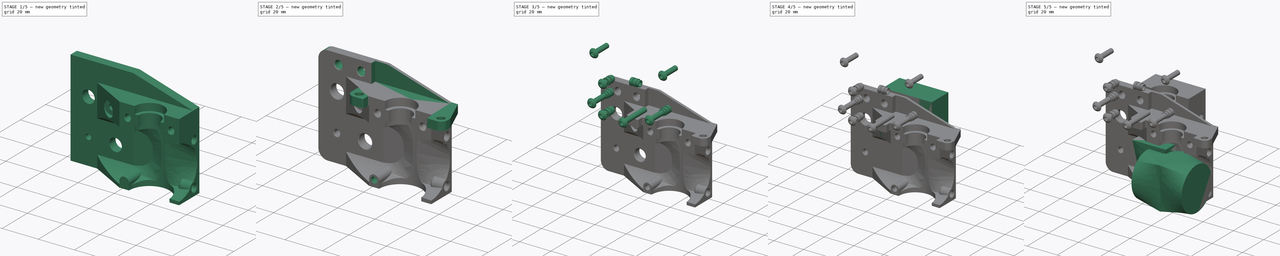
[diagram: build sequence overview — one tinted view per stage of 5, left to right]
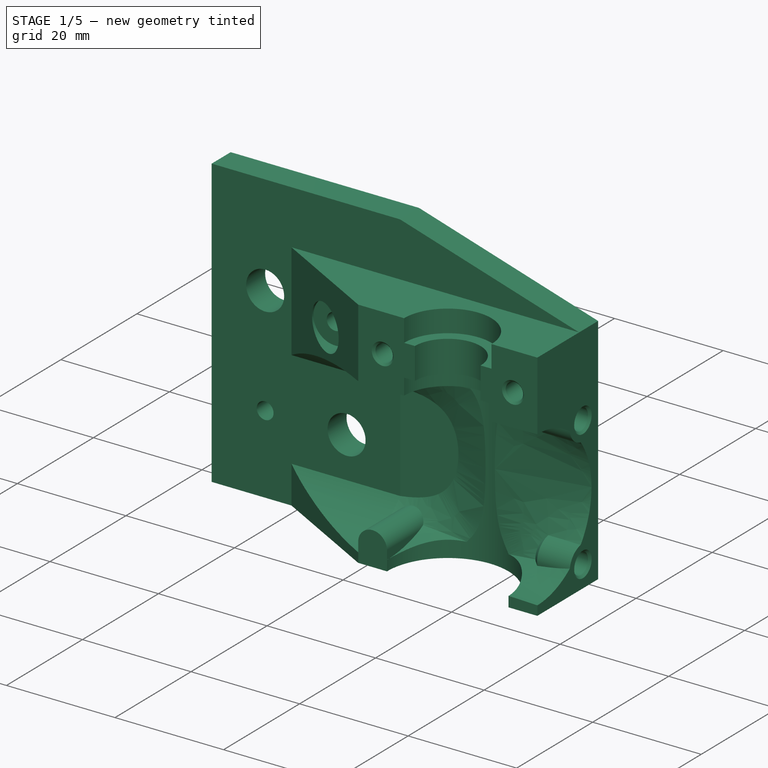
[diagram: stage 1 of 5 — iso view after this stage's code; geometry added in this stage tinted green]
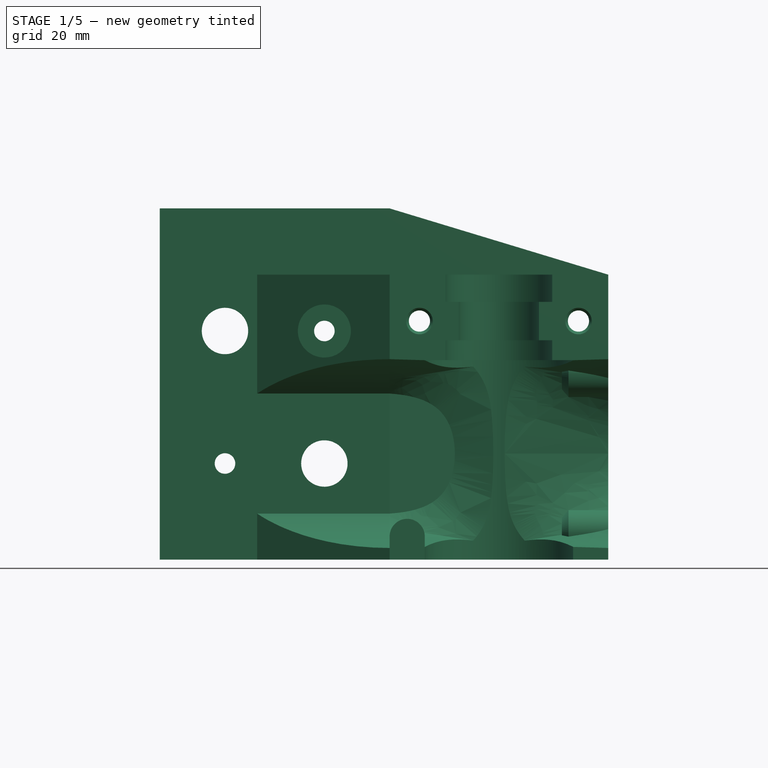
[diagram: stage 1 of 5 — front view after this stage's code; geometry added in this stage tinted green]
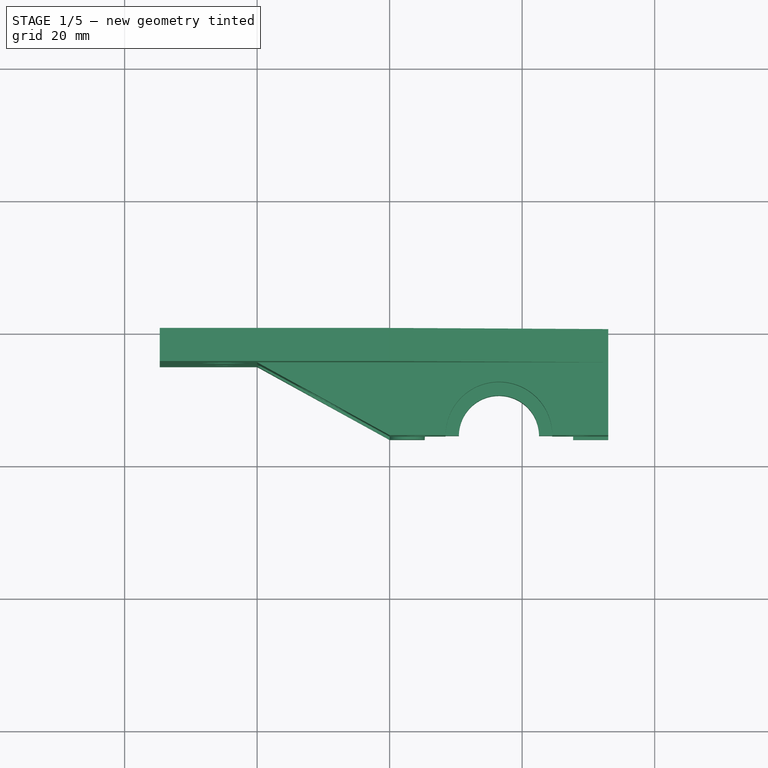
[diagram: stage 1 of 5 — top view after this stage's code; geometry added in this stage tinted green]
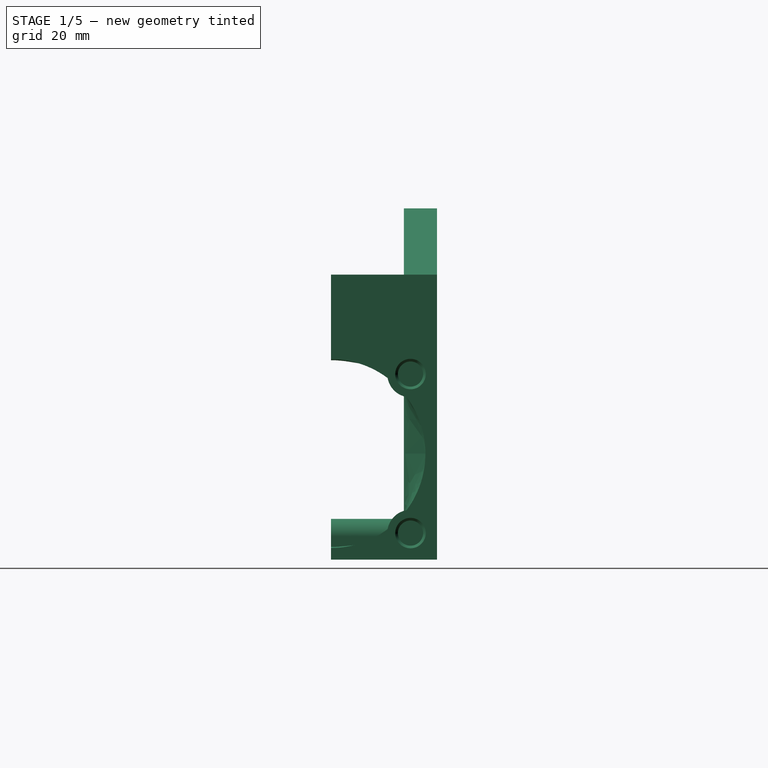
[diagram: stage 1 of 5 — right view after this stage's code; geometry added in this stage tinted green]
FCSTD DOCUMENT  (FreeCAD 0.19R24366 (Git))
Label: back-body-direct
License: All rights reserved
LicenseURL: http://en.wikipedia.org/wiki/All_rights_reserved
objects: Part::Feature×49, Sketcher::SketchObject×23, PartDesign::Pocket×16, Part::FeaturePython×12, App::Part×8, PartDesign::Body×7, Part::MultiFuse×5, PartDesign::Pad×5, PartDesign::Chamfer×5, PartDesign::FeatureBase×4, Part::Box×4, PartDesign::Fillet×3, PartDesign::Plane×2, Part::Cut×2, Part::Chamfer×2, PartDesign::AdditiveLoft×1, Part::Cylinder×1, PartDesign::CoordinateSystem×1
note: 172 computed .brp shape members not serialized (recipe doc carries the construction recipe); baked Part::Feature solids carry a one-line shape summary decoded from their .brp

FEATURE [PartDesign::Body] Body002002002
  BaseFeature = -> Body002002001
  Group = -> [BaseFeature001,Sketch015,Pocket006,Sketch016,Pocket007,Chamfer001]
  Origin = -> Origin012
  Placement = pos=(16.5,-16,-11) rot=(0,0,1;0rad)
  Tip = -> Chamfer001
FEATURE [Sketcher::SketchObject] Sketch017
  FullyConstrained = true
  MapMode = 5
  Placement = pos=(0,0,0) rot=(1,0,0;1.5708rad)
  Support = -> [XZ_Plane013]
  sketch-geometry (8):
    g0: LineSegment StartX=0 StartY=-11 StartZ=0 EndX=-34.7 EndY=-11 EndZ=0
    g1: LineSegment StartX=-34.7 StartY=-11 StartZ=0 EndX=-34.7 EndY=42 EndZ=0
    g2: LineSegment StartX=-34.7 StartY=42 StartZ=0 EndX=0 EndY=42 EndZ=0
    g3: LineSegment StartX=0 StartY=42 StartZ=0 EndX=0 EndY=-11 EndZ=0
    g4: Circle CenterX=-24.85 CenterY=23.5 CenterZ=0 NormalX=0 NormalY=0 NormalZ=1 AngleXU=0 Radius=3.5
    g5: Circle CenterX=-9.85 CenterY=23.5 CenterZ=0 NormalX=0 NormalY=0 NormalZ=1 AngleXU=0 Radius=1.55
    g6: Circle CenterX=-24.85 CenterY=3.5 CenterZ=0 NormalX=0 NormalY=0 NormalZ=1 AngleXU=0 Radius=1.55
    g7: Circle CenterX=-9.85 CenterY=3.5 CenterZ=0 NormalX=0 NormalY=0 NormalZ=1 AngleXU=0 Radius=3.5
  constraints (24):
    c: Coincident(g0,g1)
    c: Coincident(g1,g2)
    c: Coincident(g2,g3)
    c: Coincident(g3,g0)
    c: Horizontal(g0)
    c: Horizontal(g2)
    c: Vertical(g1)
    c: Vertical(g3)
    c: PointOnObject(g0,g-2)
    c: Vertical(g6,g4)
    c: Vertical(g7,g5)
    c: Horizontal(g4,g5)
    c: Horizontal(g6,g7)
    c: Equal(g4,g7)
    c: Equal(g6,g5)
    c: DistanceX(g4,g5) = 15
    c: DistanceY(g6,g4) = 20
    c: DistanceY(g-1,g7) = 3.5
    c: DistanceX(g7,g-1) = 9.85
    c: DistanceX(g2,g2) = 34.7
    c: DistanceY(g0,g-1) = 11
    c: DistanceY(g-1,g2) = 42
    c: Radius(g5) = 1.55
    c: Radius(g4) = 3.5
FEATURE [PartDesign::Pad] Pad002
  Direction = (1,1,1)
  Length = 5
  Length2 = 100
  Placement = pos=(0,0,0) rot=(1,0,0;1.5708rad)
  Profile = -> Sketch017
  Type = 0
FEATURE [PartDesign::Body] Body002002003
  Group = -> [Sketch017,Pad002]
  Origin = -> Origin013
  Tip = -> Pad002
FEATURE [Part::Feature] Body002002002001
  Placement = pos=(16.5,-16,-11) rot=(0,0,1;0rad)
  shape: bbox 33 x 27 x 43 mm, 51 faces (baked)
FEATURE [Part::MultiFuse] Fusion002
  Shapes = -> [Body002002003,Body002002002001]
FEATURE [Part::Box] Box  label="Cube"
  AttacherType = Attacher::AttachEngine3D
  Height = 19
  Length = 15
  Placement = pos=(0,-5,-4.5) rot=(0,0,1;0rad)
  Width = 5
FEATURE [Part::Chamfer] Chamfer002
  Base = -> Box
  Edges = 1 edges: [Edge5 r1=2 r2=14.99]
FEATURE [Part::MultiFuse] Fusion003
  Shapes = -> [Chamfer002,Fusion002]
FEATURE [PartDesign::Body] Body002002002002  label="side-dupporter"
  BaseFeature = -> Fusion004
  Group = -> [BaseFeature002,Sketch018,Pocket008]
  Origin = -> Origin014
  Tip = -> Pocket008
FEATURE [Part::Feature] Body002002002002001  label="side-dupporter001"
  shape: bbox 20 x 16 x 43 mm, 16 faces (baked)
FEATURE [Part::Box] Box003  label="Cube003"
  AttacherType = Attacher::AttachEngine3D
  Height = 11
  Length = 34
  Placement = pos=(-1,-5,31) rot=(0,0,1;0rad)
  Width = 5
FEATURE [Part::Chamfer] Chamfer003
  Base = -> Box003
  Edges = 1 edges: [Edge6 r1=10 r2=33]
FEATURE [Part::MultiFuse] Fusion005
  Refine = true
  Shapes = -> [Fusion003,Body002002002002001,Chamfer003]
FEATURE [PartDesign::FeatureBase] BaseFeature003
  BaseFeature = -> Fusion005
FEATURE [Sketcher::SketchObject] Sketch019
  ExternalGeometry = -> [BaseFeature003]
  FullyConstrained = true
  MapMode = 5
  Placement = pos=(0,0,0) rot=(0,0.707107,0.707107;3.14159rad)
  Support = -> [BaseFeature003]
  sketch-geometry (2):
    g0: Circle CenterX=9.85 CenterY=23.5 CenterZ=0 NormalX=0 NormalY=0 NormalZ=1 AngleXU=0 Radius=1.55
    g1: Circle CenterX=9.85 CenterY=3.5 CenterZ=0 NormalX=0 NormalY=0 NormalZ=1 AngleXU=0 Radius=3.5
  constraints (6):
    c: Vertical(g1,g0)
    c: Horizontal(g0,g-3)
    c: Horizontal(g1,g-4)
    c: Equal(g1,g-3)
    c: Equal(g0,g-4)
    c: DistanceX(g0,g-3) = 15
FEATURE [PartDesign::Pocket] Pocket009
  BaseFeature = -> BaseFeature003
  Length = 5
  Length2 = 100
  Profile = -> Sketch019
  Type = 1
FEATURE [PartDesign::Plane] DatumPlane001
  AttachmentOffset = pos=(0,0,8) rot=(0,0,1;0rad)
  Length = 91.1466
  MapMode = 5
  Placement = pos=(0,-8,-1.8e-15) rot=(1,0,0;1.5708rad)
  ResizeMode = 0
  Support = -> [XZ_Plane015]
  Width = 81.3466
FEATURE [Sketcher::SketchObject] Sketch020
  ExternalGeometry = -> [Pocket009]
  FullyConstrained = true
  MapMode = 5
  Placement = pos=(0,-8,-1.8e-15) rot=(1,0,0;1.5708rad)
  Support = -> [DatumPlane001]
  sketch-geometry (1):
    g0: Circle CenterX=-9.85 CenterY=23.5 CenterZ=0 NormalX=0 NormalY=0 NormalZ=1 AngleXU=0 Radius=4
  constraints (2):
    c: Coincident(g0,g-3)
    c: Radius(g0) = 4
FEATURE [PartDesign::Pocket] Pocket010
  BaseFeature = -> Pocket009
  Length = 5
  Length2 = 100
  Profile = -> Sketch020
  Reversed = true
  Type = 1
FEATURE [Sketcher::SketchObject] Sketch021
  ExternalGeometry = -> [Pocket010]
  FullyConstrained = true
  MapMode = 5
  Placement = pos=(0,-16,3.5e-15) rot=(1,0,0;1.5708rad)
  Support = -> [Pocket010]
  sketch-geometry (4):
    g0: ArcOfCircle CenterX=2.65 CenterY=-7.5 CenterZ=0 NormalX=0 NormalY=0 NormalZ=1 AngleXU=0 Radius=2.65 StartAngle=0 EndAngle=3.14159
    g1: LineSegment StartX=0 StartY=-7.5 StartZ=0 EndX=0 EndY=-11 EndZ=0
    g2: LineSegment StartX=0 StartY=-11 StartZ=0 EndX=5.3 EndY=-11 EndZ=0
    g3: LineSegment StartX=5.3 StartY=-11 StartZ=0 EndX=5.3 EndY=-7.5 EndZ=0
  constraints (12):
    c: PointOnObject(g0,g-2)
    c: Horizontal(g0,g0)
    c: Horizontal(g0,g0)
    c: Tangent(g0,g1) = -1.5708
    c: Coincident(g1,g2)
    c: PointOnObject(g2,g-3)
    c: Horizontal(g2)
    c: Coincident(g2,g3)
    c: Coincident(g3,g0)
    c: Vertical(g3)
    c: DistanceY(g0,g-1) = 7.5
    c: DistanceX(g2,g2) = 5.3
FEATURE [PartDesign::Pad] Pad003
  BaseFeature = -> Pocket010
  Direction = (1,1,1)
  Length = 10
  Length2 = 100
  Profile = -> Sketch021
  Reversed = true
  Type = 3
  UpToFace = -> Pocket010 [Face4]
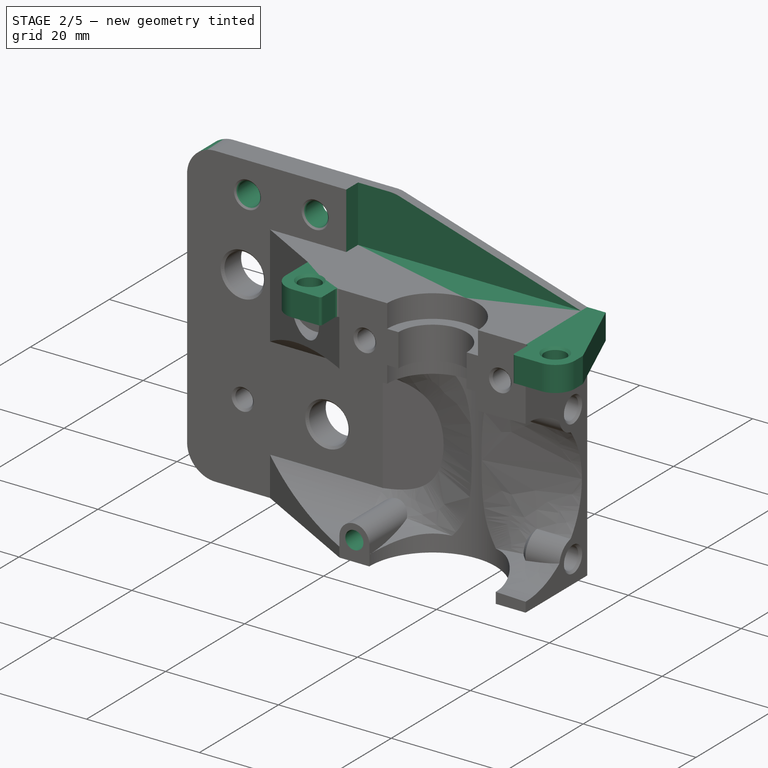
[diagram: stage 2 of 5 — iso view after this stage's code; geometry added in this stage tinted green]
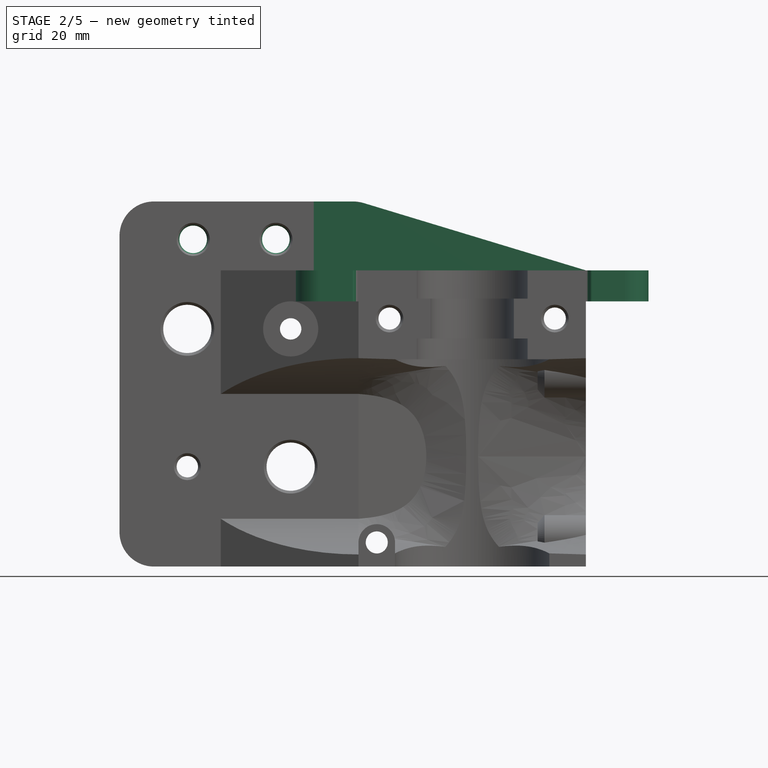
[diagram: stage 2 of 5 — front view after this stage's code; geometry added in this stage tinted green]
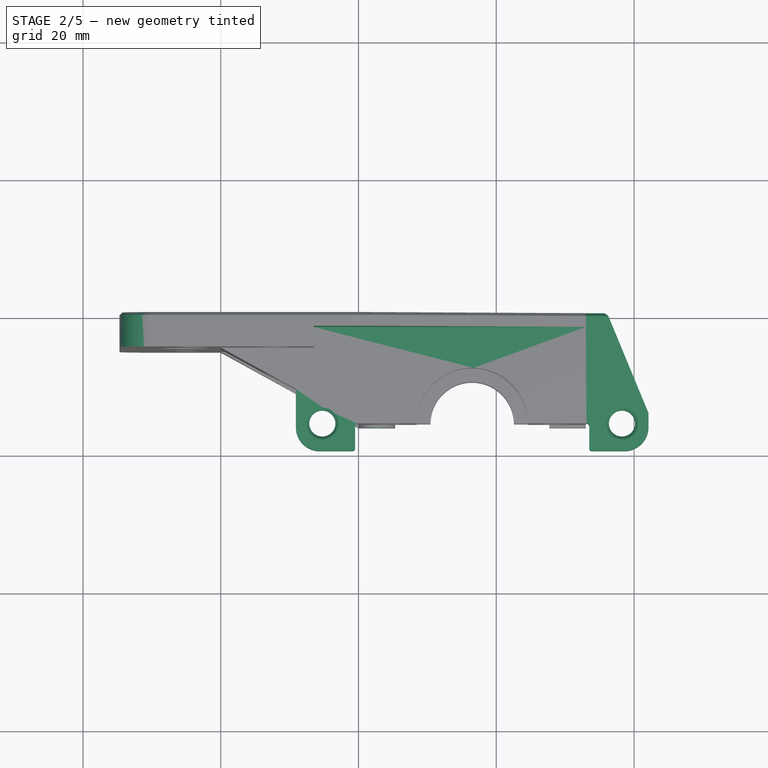
[diagram: stage 2 of 5 — top view after this stage's code; geometry added in this stage tinted green]
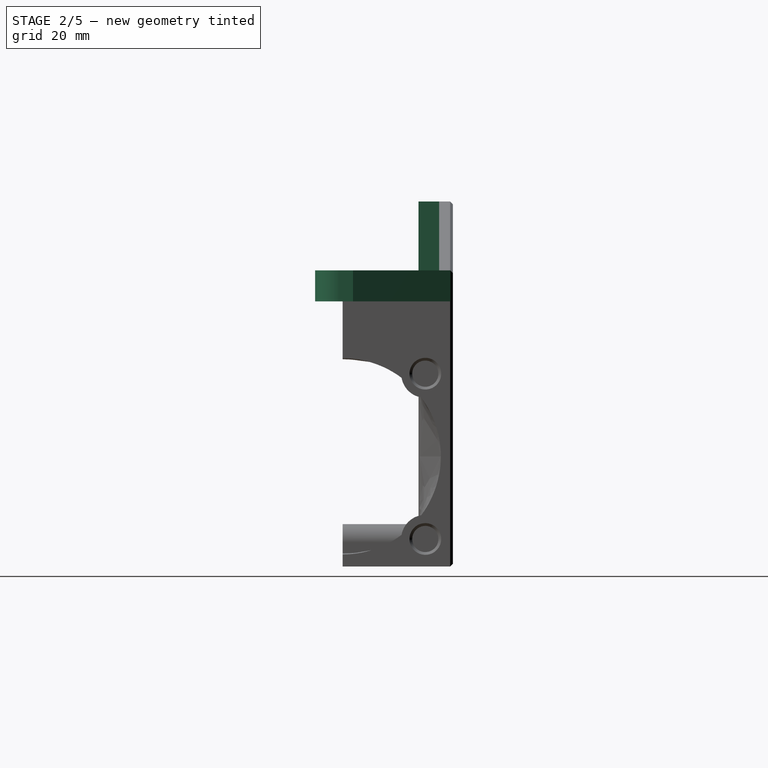
[diagram: stage 2 of 5 — right view after this stage's code; geometry added in this stage tinted green]
FEATURE [Sketcher::SketchObject] Sketch022
  ExternalGeometry = -> [Pad003]
  FullyConstrained = true
  MapMode = 5
  Placement = pos=(0,-16,0) rot=(1,0,0;1.5708rad)
  Support = -> [Pad003]
  sketch-geometry (1):
    g0: Circle CenterX=2.65 CenterY=-7.5 CenterZ=0 NormalX=0 NormalY=0 NormalZ=1 AngleXU=0 Radius=1.6
  constraints (2):
    c: Coincident(g0,g-3)
    c: Radius(g0) = 1.6
FEATURE [PartDesign::Pocket] Pocket011
  BaseFeature = -> Pad003
  Length = 5
  Length2 = 100
  Profile = -> Sketch022
  Type = 1
FEATURE [Sketcher::SketchObject] Sketch023
  ExternalGeometry = -> [Pocket011]
  FullyConstrained = true
  MapMode = 5
  Placement = pos=(0,0,0) rot=(0,0.707107,0.707107;3.14159rad)
  Support = -> [Pocket011]
  sketch-geometry (1):
    g0: Circle CenterX=-2.65 CenterY=-7.5 CenterZ=0 NormalX=0 NormalY=0 NormalZ=1 AngleXU=0 Radius=2
  constraints (2):
    c: Coincident(g0,g-3)
    c: Radius(g0) = 2
FEATURE [PartDesign::Pocket] Pocket012
  BaseFeature = -> Pocket011
  Length = 5
  Length2 = 100
  Profile = -> Sketch023
  Type = 0
FEATURE [PartDesign::Chamfer] Chamfer004
  Angle = 45
  Base = -> Pocket012 [Edge21]
  BaseFeature = -> Pocket012
  ChamferType = 0
  FlipDirection = false
  Size = 0.4
  Size2 = 1
  SupportTransform = false
FEATURE [PartDesign::Fillet] Fillet
  Base = -> Chamfer004 [Edge18,Edge17,Edge27]
  BaseFeature = -> Chamfer004
  Radius = 5
  Refine = true
  SupportTransform = false
FEATURE [Sketcher::SketchObject] Sketch024
  FullyConstrained = true
  MapMode = 5
  Placement = pos=(-6e-16,-5,9e-16) rot=(1,0,0;1.5708rad)
  Support = -> [Fillet]
  sketch-geometry (2):
    g0: Circle CenterX=-12 CenterY=36.5 CenterZ=0 NormalX=0 NormalY=0 NormalZ=1 AngleXU=0 Radius=2
    g1: Circle CenterX=-24 CenterY=36.5 CenterZ=0 NormalX=0 NormalY=0 NormalZ=1 AngleXU=0 Radius=2
  constraints (6):
    c: Horizontal(g1,g0)
    c: DistanceY(g-1,g0) = 36.5
    c: Equal(g1,g0)
    c: DistanceX(g0,g-1) = 12
    c: DistanceX(g1,g0) = 12
    c: Radius(g0) = 2
FEATURE [PartDesign::Pocket] Pocket013
  BaseFeature = -> Fillet
  Length = 5
  Length2 = 100
  Profile = -> Sketch024
  Type = 1
FEATURE [PartDesign::CoordinateSystem] LCS_sherpa_mini  label="LCS_sherpa-mini"
  AttacherType = Attacher::AttachEngine3D
FEATURE [Part::Feature] Cut001001001  label="E3D-bowden-collet"
  Placement = pos=(-9e-15,-32.5,72) rot=(0,1,0;3.14159rad)
  shape: bbox 6 x 6 x 3.5 mm, 32 faces (baked)
FEATURE [App::Part] Part  label="sherpa-mini"
  Group = -> [Part__Feature112001004,Part__Feature112001005,Chamfer005021077002002,Part__Feature112001006,Part__Feature112001007,Fusion036012039011002025018010027003,HeatSet024,HeatSet025,HeatSet026,HeatSet027,HeatSet028,Screw1386,Screw1385,Screw1390,Screw1387,Screw1388,Screw1389,idler_gear_assy_sherpa_mini_a3_r9c,drive_core_sherpa_mini_a3_r9c,Screw1391,LCS_sherpa_mini,Cut001001001]
  Origin = -> Origin020
  Placement = pos=(16.5,16.5,3.5) rot=(0,0,1;0rad)
FEATURE [Sketcher::SketchObject] Sketch045
  ExternalGeometry = -> [Pocket013]
  FullyConstrained = true
  MapMode = 5
  Placement = pos=(-6e-16,-5,9e-16) rot=(1,0,0;1.5708rad)
  Support = -> [Pocket013]
  sketch-geometry (4):
    g0: LineSegment StartX=-6.5 StartY=42 StartZ=0 EndX=34 EndY=42 EndZ=0
    g1: LineSegment StartX=34 StartY=42 StartZ=0 EndX=34 EndY=32 EndZ=0
    g2: LineSegment StartX=34 StartY=32 StartZ=0 EndX=-6.5 EndY=32 EndZ=0
    g3: LineSegment StartX=-6.5 StartY=32 StartZ=0 EndX=-6.5 EndY=42 EndZ=0
  constraints (12):
    c: Coincident(g0,g1)
    c: Coincident(g1,g2)
    c: Coincident(g2,g3)
    c: Coincident(g3,g0)
    c: Horizontal(g0)
    c: Horizontal(g2)
    c: Vertical(g1)
    c: Vertical(g3)
    c: PointOnObject(g0,g-4)
    c: Horizontal(g2,g-3)
    c: DistanceX(g2,g-3) = 6.5
    c: DistanceX(g-3,g1) = 34
FEATURE [PartDesign::Pocket] Pocket031
  BaseFeature = -> Pocket013
  Length = 3
  Length2 = 100
  Profile = -> Sketch045
  Type = 0
FEATURE [Sketcher::SketchObject] Sketch046
  ExternalGeometry = -> [Pocket031]
  FullyConstrained = true
  MapMode = 5
  Placement = pos=(3.2e-15,5.8e-15,32) rot=(0,0,1;0rad)
  Support = -> [Pocket031]
  sketch-geometry (12):
    g0: LineSegment StartX=-3.6e-15 StartY=-16 StartZ=0 EndX=-0.5 EndY=-16 EndZ=0
    g1: LineSegment StartX=-0.5 StartY=-16 StartZ=0 EndX=-0.5 EndY=-20 EndZ=0
    g2: LineSegment StartX=-0.5 StartY=-20 StartZ=0 EndX=-9.1 EndY=-20 EndZ=0
    g3: LineSegment StartX=-9.1 StartY=-20 StartZ=0 EndX=-9.1 EndY=-5 EndZ=0
    g4: LineSegment StartX=-9.1 StartY=-5 StartZ=0 EndX=-3.6e-15 EndY=-5 EndZ=0
    g5: LineSegment StartX=-3.6e-15 StartY=-5 StartZ=0 EndX=-3.6e-15 EndY=-16 EndZ=0
    g6: LineSegment StartX=33 StartY=0 StartZ=0 EndX=42.1 EndY=0 EndZ=0
    g7: LineSegment StartX=42.1 StartY=0 StartZ=0 EndX=42.1 EndY=-20 EndZ=0
    g8: LineSegment StartX=42.1 StartY=-20 StartZ=0 EndX=33.5 EndY=-20 EndZ=0
    g9: LineSegment StartX=33.5 StartY=-20 StartZ=0 EndX=33.5 EndY=-16 EndZ=0
    g10: LineSegment StartX=33.5 StartY=-16 StartZ=0 EndX=33 EndY=-16 EndZ=0
    g11: LineSegment StartX=33 StartY=-16 StartZ=0 EndX=33 EndY=0 EndZ=0
  constraints (34):
    c: Coincident(g-3,g0)
    c: Horizontal(g0)
    c: Coincident(g0,g1)
    c: Vertical(g1)
    c: Coincident(g1,g2)
    c: Horizontal(g2)
    c: Coincident(g2,g3)
    c: PointOnObject(g3,g-6)
    c: Vertical(g3)
    c: Coincident(g3,g4)
    c: PointOnObject(g4,g-5)
    c: Coincident(g4,g5)
    c: Coincident(g5,g0)
    c: Vertical(g5)
    c: PointOnObject(g6,g-1)
    c: PointOnObject(g6,g-1)
    c: Coincident(g6,g7)
    c: Vertical(g7)
    c: Coincident(g7,g8)
    c: Horizontal(g8)
    c: Coincident(g8,g9)
    c: Vertical(g9)
    c: Coincident(g9,g10)
    c: Coincident(g10,g-4)
    c: Coincident(g11,g10)
    c: Coincident(g11,g6)
    c: Vertical(g11)
    c: Horizontal(g10)
    c: Horizontal(g1,g8)
    c: DistanceX(g0,g0) = 0.5
    c: DistanceX(g10,g10) = 0.5
    c: DistanceX(g2,g2) = 8.6
    c: DistanceX(g8,g8) = 8.6
    c: DistanceY(g1,g1) = 4
FEATURE [PartDesign::Pad] Pad009
  BaseFeature = -> Pocket031
  Direction = (1,1,1)
  Length = 4.5
  Length2 = 100
  Profile = -> Sketch046
  Reversed = true
  Type = 0
FEATURE [PartDesign::Fillet] Fillet005
  Base = -> Pad009 [Edge228,Edge145]
  BaseFeature = -> Pad009
  Radius = 3.5
  SupportTransform = false
FEATURE [PartDesign::Fillet] Fillet006
  Base = -> Fillet005 [Edge239,Edge16,Edge229,Edge29]
  BaseFeature = -> Fillet005
  Radius = 0.4
  Refine = true
  SupportTransform = false
FEATURE [PartDesign::Chamfer] Chamfer005021077002003
  Angle = 45
  Base = -> Fillet006 [Edge39]
  BaseFeature = -> Fillet006
  ChamferType = 1
  FlipDirection = false
  Size = 14.5
  Size2 = 6
  SupportTransform = false
FEATURE [Sketcher::SketchObject] Sketch047
  ExternalGeometry = -> [Chamfer005021077002003]
  FullyConstrained = true
  MapMode = 5
  Placement = pos=(2.7e-15,5e-15,32) rot=(0,0,1;0rad)
  Support = -> [Chamfer005021077002003]
  sketch-geometry (2):
    g0: Circle CenterX=-5.25 CenterY=-16 CenterZ=0 NormalX=0 NormalY=0 NormalZ=1 AngleXU=0 Radius=1.9
    g1: Circle CenterX=38.25 CenterY=-16 CenterZ=0 NormalX=0 NormalY=0 NormalZ=1 AngleXU=0 Radius=1.9
  constraints (6):
    c: Horizontal(g1,g-3)
    c: Horizontal(g-3,g0)
    c: DistanceX(g0,g-3) = 21.75
    c: DistanceX(g-3,g1) = 21.75
    c: Equal(g1,g0)
    c: Radius(g1) = 1.9
FEATURE [PartDesign::Pocket] Pocket032
  BaseFeature = -> Chamfer005021077002003
  Length = 5
  Length2 = 100
  Profile = -> Sketch047
  Type = 1
FEATURE [PartDesign::Chamfer] Chamfer005021077002004
  Angle = 45
  Base = -> Pocket032 [Edge83,Edge68,Edge201,Edge11,Edge122,Edge104,Edge106,Edge117,Edge119,Edge22,Edge20,Edge16,Edge4,Edge19,Edge21,Edge23,Edge28,Edge37,Edge29,Edge36,Edge24,Edge26,Edge27,Edge25]
  BaseFeature = -> Pocket032
  ChamferType = 0
  FlipDirection = false
  Size = 0.4
  Size2 = 1
  SupportTransform = false
FEATURE [PartDesign::Body] Body002002002002002  label="back-r1"
  BaseFeature = -> Fusion005
  Group = -> [BaseFeature003,Sketch019,Pocket009,DatumPlane001,Sketch020,Pocket010,Sketch021,Pad003,Sketch022,Pocket011,Sketch023,Pocket012,Chamfer004,Fillet,Sketch024,Pocket013,Sketch045,Pocket031,Sketch046,Pad009,Fillet005,Fillet006,Chamfer005021077002003,Sketch047,Pocket032,Chamfer005021077002004]
  Origin = -> Origin015
  Placement = pos=(0,0,11) rot=(0,0,1;0rad)
  Tip = -> Chamfer005021077002004
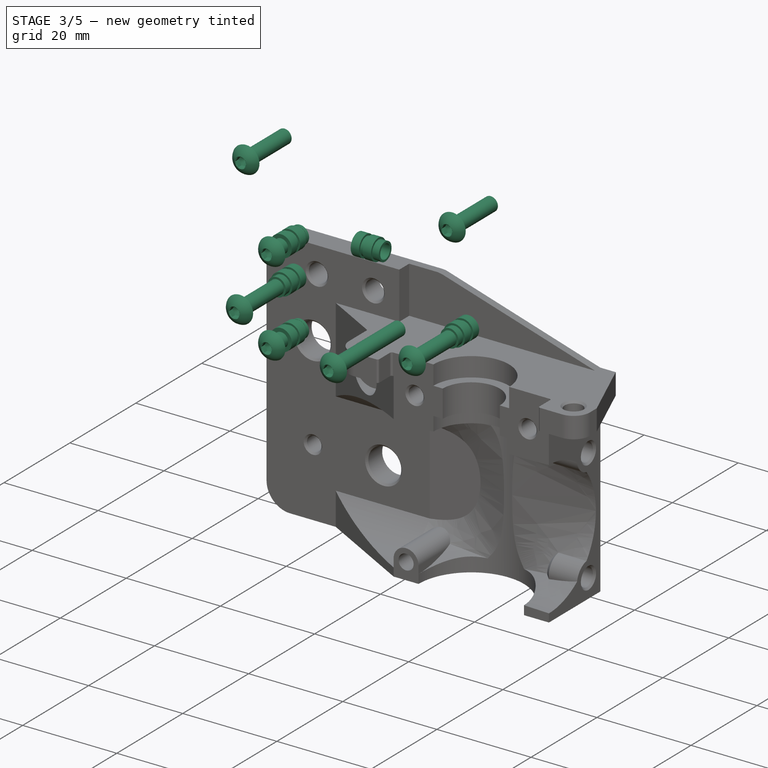
[diagram: stage 3 of 5 — iso view after this stage's code; geometry added in this stage tinted green]
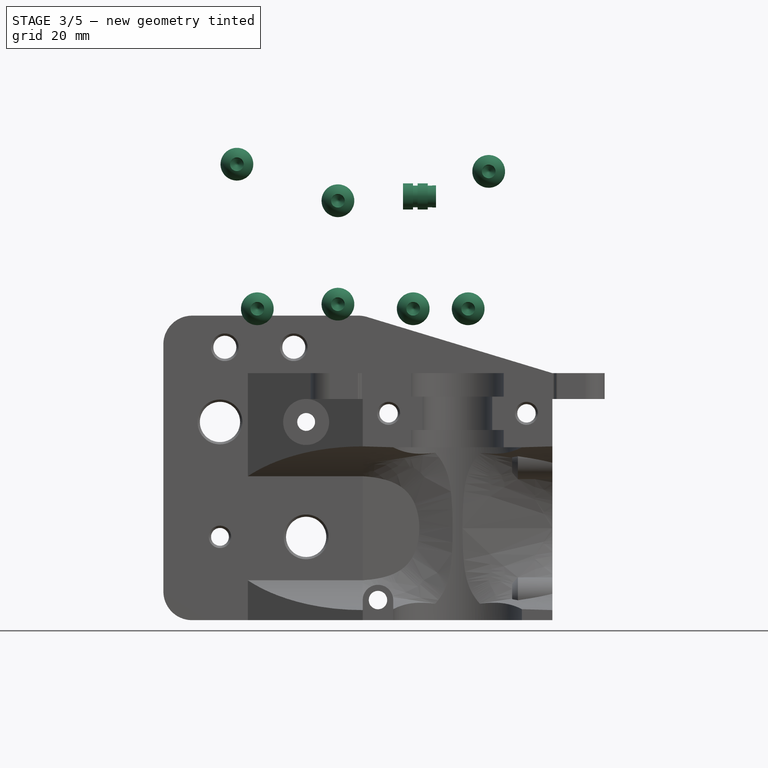
[diagram: stage 3 of 5 — front view after this stage's code; geometry added in this stage tinted green]
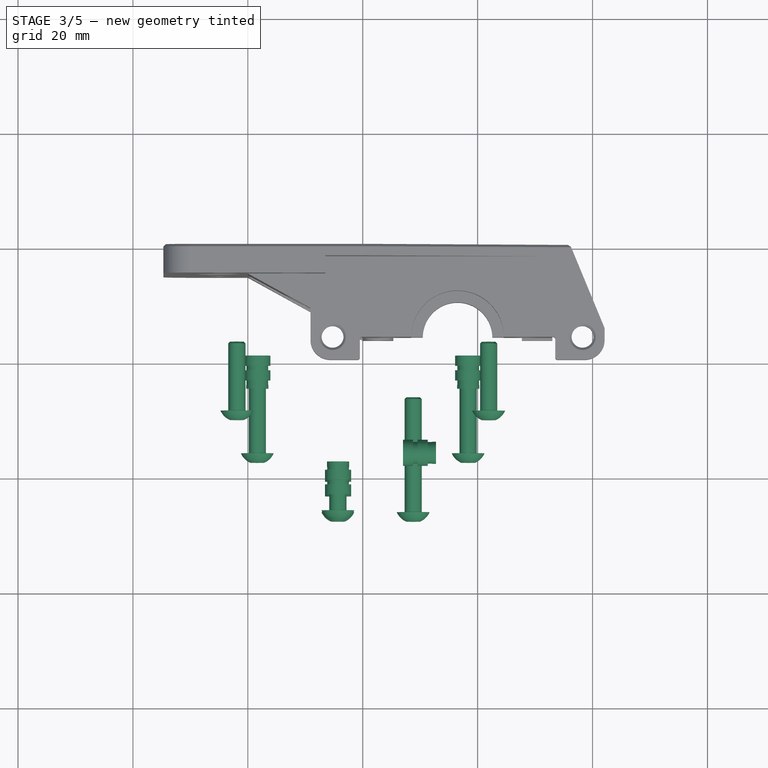
[diagram: stage 3 of 5 — top view after this stage's code; geometry added in this stage tinted green]
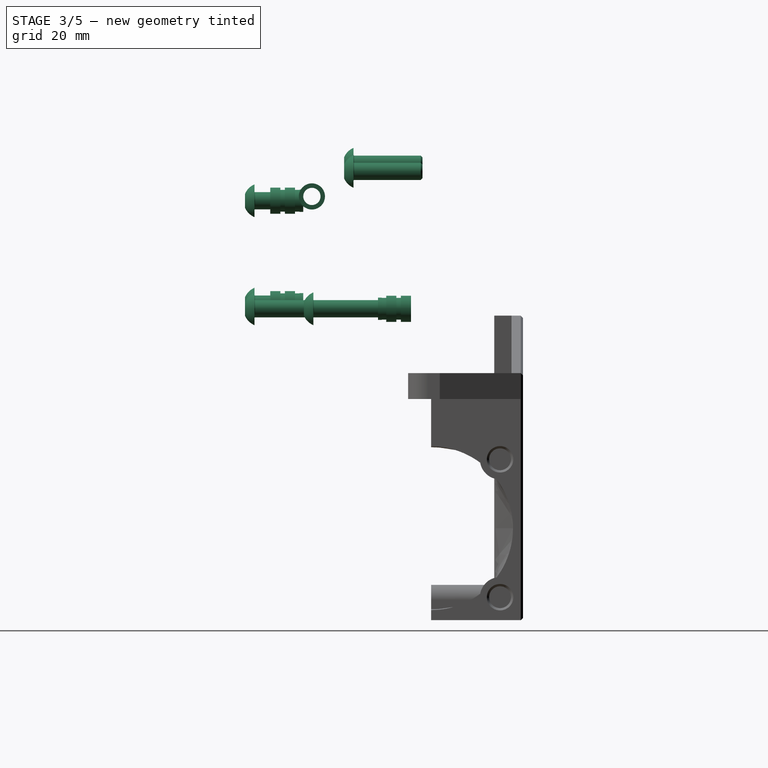
[diagram: stage 3 of 5 — right view after this stage's code; geometry added in this stage tinted green]
FEATURE [Part::Feature] Fusion036012039011002025018010027003  label="sherpa-knob"
  Placement = pos=(28.33,-36.7,62.6) rot=(0,-1,0;1.5708rad)
  shape: bbox 23.19 x 12.15 x 12.15 mm, 2718 faces (baked)
FEATURE [Part::Feature] Part__Feature112001004  label="Nema-015"
  Placement = pos=(-0.02,-25.5007,41.66) rot=(1,0,0;1.5708rad)
  shape: bbox 50.9 x 23.5 x 36.5 mm, 227 faces (baked)
FEATURE [Part::Feature] Part__Feature112001006  label="sherpa-body-front"
  Placement = pos=(-4.32,-44,53) rot=(1,0,0;1.5708rad)
  shape: bbox 24.8 x 3.9 x 26.5 mm, 96 faces (baked)
FEATURE [Part::FeaturePython] HeatSet024  label="M3x5x4-HeatSet"  # WARN: FeaturePython — macro-defined, semantics opaque (R4)
  Placement = pos=(18.35,-19.5,43.2) rot=(-1,0,0;1.5708rad)
  baseObject = -> Part__Feature112001005 [Edge735]
  diameter = 2
  invert = true
  offset = 0
FEATURE [Part::FeaturePython] HeatSet025  label="M3x5x4-HeatSet001"  # WARN: FeaturePython — macro-defined, semantics opaque (R4)
  Placement = pos=(-18.35,-19.5,43.2) rot=(-1,0,0;1.5708rad)
  baseObject = -> Part__Feature112001005 [Edge736]
  diameter = 2
  invert = true
  offset = 0
FEATURE [Part::FeaturePython] HeatSet026  label="M3x5x4-HeatSet002"  # WARN: FeaturePython — macro-defined, semantics opaque (R4)
  Placement = pos=(7,-36.75,62.75) rot=(0,-1,0;1.5708rad)
  baseObject = -> Chamfer005021077002002 [Edge997]
  diameter = 2
  invert = false
  offset = 0
FEATURE [Part::Feature] Chamfer005021077002002  label="sherpa-body-main-modded"
  Placement = pos=(-4.3,-26.5,53) rot=(1,0,0;1.5708rad)
  shape: bbox 51.31 x 18.93 x 37.37 mm, 701 faces (baked)
FEATURE [Part::Feature] Part__Feature112001005  label="sherpa-body-back"
  Placement = pos=(-4.3,-19.5,53) rot=(1,0,0;1.5708rad)
  shape: bbox 51.24 x 9.996 x 47.65 mm, 527 faces (baked)
FEATURE [Part::Feature] Part__Feature112001007  label="sherpa-arm"
  Placement = pos=(-4.32,-30.5,53) rot=(1,0,0;1.5708rad)
  shape: bbox 10.86 x 21.68 x 38.76 mm, 332 faces (baked)
FEATURE [Part::FeaturePython] HeatSet027  label="M3x5x4-HeatSet003"  # WARN: FeaturePython — macro-defined, semantics opaque (R4)
  Placement = pos=(-4.3,-44,62) rot=(1,0,0;1.5708rad)
  baseObject = -> Chamfer005021077002002 [Edge284]
  diameter = 2
  invert = true
  offset = 0
FEATURE [Part::FeaturePython] HeatSet028  label="M3x5x4-HeatSet004"  # WARN: FeaturePython — macro-defined, semantics opaque (R4)
  Placement = pos=(-4.3,-44,44) rot=(1,0,0;1.5708rad)
  baseObject = -> Chamfer005021077002002 [Edge285]
  diameter = 2
  invert = true
  offset = 0
FEATURE [Part::FeaturePython] Screw1385  label="M3x8-Screw135"  # Fasteners workbench fastener (typed FeaturePython)
  Placement = pos=(-4.32,-46.75,44) rot=(1,0,0;1.5708rad)
  baseObject = -> Part__Feature112001006 [Edge74]
  diameter = 1
  invert = true
  leftHanded = false
  length = 1
  lengthCustom = 8
  matchOuter = true
  offset = 0
  thread = false
  type = 40
FEATURE [Part::FeaturePython] Screw1386  label="M3x8-Screw134"  # Fasteners workbench fastener (typed FeaturePython)
  Placement = pos=(-4.32,-46.75,62) rot=(1,0,0;1.5708rad)
  baseObject = -> Part__Feature112001006 [Edge130]
  diameter = 1
  invert = true
  leftHanded = false
  length = 1
  lengthCustom = 8
  matchOuter = true
  offset = 0
  thread = false
  type = 40
FEATURE [Part::FeaturePython] Screw1387  label="M3x16-Screw"  # Fasteners workbench fastener (typed FeaturePython)
  Placement = pos=(-18.35,-36.5,43.2) rot=(1,0,0;1.5708rad)
  baseObject = -> Chamfer005021077002002 [Edge1178]
  diameter = 1
  invert = true
  leftHanded = false
  length = 5
  lengthCustom = 16
  matchOuter = true
  offset = 0
  thread = false
  type = 40
FEATURE [Part::FeaturePython] Screw1388  label="M3x16-Screw001"  # Fasteners workbench fastener (typed FeaturePython)
  Placement = pos=(18.35,-36.5,43.2) rot=(1,0,0;1.5708rad)
  baseObject = -> Chamfer005021077002002 [Edge1135]
  diameter = 1
  invert = true
  leftHanded = false
  length = 5
  lengthCustom = 16
  matchOuter = true
  offset = 0
  thread = false
  type = 40
FEATURE [Part::FeaturePython] Screw1389  label="M3x12-Screw069"  # Fasteners workbench fastener (typed FeaturePython)
  Placement = pos=(-21.9025,-29.5,68.3593) rot=(1,0,0;1.5708rad)
  baseObject = -> Chamfer005021077002002 [Edge558]
  diameter = 1
  invert = true
  leftHanded = false
  length = 3
  lengthCustom = 12
  matchOuter = true
  offset = 0
  thread = false
  type = 40
FEATURE [Part::FeaturePython] Screw1390  label="M3x12-Screw068"  # Fasteners workbench fastener (typed FeaturePython)
  Placement = pos=(21.9203,-29.5,67.1093) rot=(1,0,0;1.5708rad)
  baseObject = -> Chamfer005021077002002 [Edge329]
  diameter = 1
  invert = true
  leftHanded = false
  length = 3
  lengthCustom = 12
  matchOuter = true
  offset = 0
  thread = false
  type = 40
FEATURE [Part::Feature] Part__Feature112001144  label="needle_bearing^idler_gear_assy_sherpa_mini_a3_r9c001"
  Placement = pos=(0,0,-4.35) rot=(0,0,1;0.1848rad)
  shape: bbox 4.8 x 4.8 x 6.5 mm, 82 faces (baked)
FEATURE [Part::Feature] Part__Feature112001145  label="needle_bearing^idler_gear_assy_sherpa_mini_a3_r9c"
  Placement = pos=(0,0,-4.35) rot=(0,0,1;0.1848rad)
  shape: bbox 1 x 1 x 4.25 mm, 8 faces (baked)
FEATURE [Part::Feature] Part__Feature001  label="0.5mm_shim^drive_core_sherpa_mini_a3_r9c"
  Placement = pos=(0,0,10.3) rot=(0,0,1;0rad)
  shape: bbox 7 x 7 x 0.5 mm, 14 faces (baked)
FEATURE [Part::Feature] Part__Feature031  label="needle_bearing^idler_gear_assy_sherpa_mini_a3_r9c012"
  Placement = pos=(0,0,3.15) rot=(0,0,1;0.1848rad)
  shape: bbox 1 x 1 x 4.25 mm, 8 faces (baked)
FEATURE [Part::Feature] Part__Feature112001146  label="shaft^idler_gear_assy_sherpa_mini_a3_r9c"
  shape: bbox 3 x 3 x 20 mm, 8 faces (baked)
FEATURE [Part::Feature] Part__Feature009  label="MR85-2RS^drive_core_sherpa_mini_a3_r9c006"
  Placement = pos=(0,0,-12.05) rot=(0,0,1;0rad)
  shape: bbox 7.4 x 7.4 x 2.3 mm, 6 faces (baked)
FEATURE [Part::Feature] Part__Feature112001147  label="needle_bearing^idler_gear_assy_sherpa_mini_a3_r9c005"
  Placement = pos=(0,0,-4.35) rot=(0,0,1;0.1848rad)
  shape: bbox 1 x 1 x 4.25 mm, 8 faces (baked)
FEATURE [Part::Feature] Part__Feature112001148  label="MR85-2RS^drive_core_sherpa_mini_a3_r9c"
  Placement = pos=(0,0,12.05) rot=(0,0,1;0rad)
  shape: bbox 8 x 8 x 2.5 mm, 12 faces (baked)
FEATURE [Part::Feature] Part__Feature112001149  label="needle_bearing^idler_gear_assy_sherpa_mini_a3_r9c007"
  Placement = pos=(0,0,-4.35) rot=(0,0,1;0.1848rad)
  shape: bbox 1 x 1 x 4.25 mm, 8 faces (baked)
FEATURE [Part::Feature] Part__Feature007  label="MR85-2RS^drive_core_sherpa_mini_a3_r9c004"
  Placement = pos=(0,0,-12.05) rot=(0,0,1;0rad)
  shape: bbox 8 x 8 x 2.5 mm, 12 faces (baked)
FEATURE [Part::Feature] Part__Feature112001150  label="needle_bearing^idler_gear_assy_sherpa_mini_a3_r9c006"
  Placement = pos=(0,0,-4.35) rot=(0,0,1;0.1848rad)
  shape: bbox 1 x 1 x 4.25 mm, 8 faces (baked)
FEATURE [Part::Feature] Part__Feature  label="shaft^drive_core_sherpa_mini_a3_r9c"
  shape: bbox 5 x 5 x 26.6 mm, 23 faces (baked)
FEATURE [Part::Feature] Part__Feature112001151  label="idler_gear^idler_gear_assy_sherpa_mini_a3_r9c"
  Placement = pos=(0,0,2.4) rot=(0,0,1;0.1848rad)
  shape: bbox 24.52 x 24.41 x 14.5 mm, 457 faces (baked)
FEATURE [Part::Feature] Part__Feature112001152  label="m3_set_screw^drive_core_sherpa_mini_a3_r9c"
  Placement = pos=(0,2,3.3) rot=(0,0,1;0rad)
  shape: bbox 3.112 x 2.509 x 3.465 mm, 55 faces (baked)
FEATURE [Part::Feature] Part__Feature112001153  label="MR85-2RS^drive_core_sherpa_mini_a3_r9c001"
  Placement = pos=(0,0,12.05) rot=(0,0,1;0rad)
  shape: bbox 5.6 x 5.6 x 2.5 mm, 14 faces (baked)
FEATURE [Part::Feature] Part__Feature035  label="needle_bearing^idler_gear_assy_sherpa_mini_a3_r9c016"
  Placement = pos=(0,0,3.15) rot=(0,0,1;0.1848rad)
  shape: bbox 1 x 1 x 4.25 mm, 8 faces (baked)
FEATURE [Part::Feature] Part__Feature032  label="needle_bearing^idler_gear_assy_sherpa_mini_a3_r9c013"
  Placement = pos=(0,0,3.15) rot=(0,0,1;0.1848rad)
  shape: bbox 1 x 1 x 4.25 mm, 8 faces (baked)
FEATURE [Part::Feature] Part__Feature112001154  label="needle_bearing^idler_gear_assy_sherpa_mini_a3_r9c009"
  Placement = pos=(0,0,3.15) rot=(0,0,1;0.1848rad)
  shape: bbox 1 x 1 x 4.25 mm, 8 faces (baked)
FEATURE [Part::Feature] Part__Feature003  label="filament_gear^drive_core_sherpa_mini_a3_r9c"
  Placement = pos=(0,0,6.3) rot=(0,0,1;0rad)
  shape: bbox 24.52 x 24.23 x 14.5 mm, 464 faces (baked)
FEATURE [Part::Feature] Part__Feature002  label="sherpa_mini_gear_50t_sl_7mm^drive_core_sherpa_mini_a3_r9c"
  Placement = pos=(0,0,-10.7) rot=(0,0,1;3.14159rad)
  shape: bbox 34.81 x 38.99 x 7.033 mm, 520 faces (baked)
FEATURE [Part::Feature] Part__Feature112001155  label="needle_bearing^idler_gear_assy_sherpa_mini_a3_r9c003"
  Placement = pos=(0,0,-4.35) rot=(0,0,1;0.1848rad)
  shape: bbox 1 x 1 x 4.25 mm, 8 faces (baked)
FEATURE [Part::Feature] Part__Feature112001156  label="needle_bearing^idler_gear_assy_sherpa_mini_a3_r9c011"
  Placement = pos=(0,0,3.15) rot=(0,0,1;0.1848rad)
  shape: bbox 1 x 1 x 4.25 mm, 8 faces (baked)
FEATURE [Part::Feature] Part__Feature008  label="MR85-2RS^drive_core_sherpa_mini_a3_r9c005"
  Placement = pos=(0,0,-12.05) rot=(0,0,1;0rad)
  shape: bbox 5.6 x 5.6 x 2.5 mm, 14 faces (baked)
FEATURE [App::Part] MR85_2RS_drive_core_sherpa_mini_a3_r9c001  label="MR85-2RS^drive_core_sherpa_mini_a3_r9c007"
  Group = -> [Part__Feature007,Part__Feature008,Part__Feature009]
  Origin = -> Origin001
FEATURE [Part::Feature] Part__Feature006  label="MR85-2RS^drive_core_sherpa_mini_a3_r9c002"
  Placement = pos=(0,0,12.05) rot=(0,0,1;0rad)
  shape: bbox 7.4 x 7.4 x 2.3 mm, 6 faces (baked)
FEATURE [App::Part] MR85_2RS_drive_core_sherpa_mini_a3_r9c  label="MR85-2RS^drive_core_sherpa_mini_a3_r9c003"
  Group = -> [Part__Feature112001148,Part__Feature112001153,Part__Feature006]
  Origin = -> Origin208
FEATURE [App::Part] drive_core_sherpa_mini_a3_r9c  label="driver-gear"
  Group = -> [Part__Feature,Part__Feature001,Part__Feature002,Part__Feature003,MR85_2RS_drive_core_sherpa_mini_a3_r9c,MR85_2RS_drive_core_sherpa_mini_a3_r9c001,Part__Feature112001152]
  Origin = -> Origin002
  Placement = pos=(-4.3,-33,53) rot=(1,0,0;1.5708rad)
FEATURE [Part::Feature] Part__Feature112001157  label="needle_bearing^idler_gear_assy_sherpa_mini_a3_r9c010"
  Placement = pos=(0,0,3.15) rot=(0,0,1;0.1848rad)
  shape: bbox 4.8 x 4.8 x 6.5 mm, 82 faces (baked)
FEATURE [Part::Feature] Part__Feature112001158  label="needle_bearing^idler_gear_assy_sherpa_mini_a3_r9c002"
  Placement = pos=(0,0,-4.35) rot=(0,0,1;0.1848rad)
  shape: bbox 1 x 1 x 4.25 mm, 8 faces (baked)
FEATURE [Part::Feature] Part__Feature112001159  label="needle_bearing^idler_gear_assy_sherpa_mini_a3_r9c004"
  Placement = pos=(0,0,-4.35) rot=(0,0,1;0.1848rad)
  shape: bbox 1 x 1 x 4.25 mm, 8 faces (baked)
FEATURE [App::Part] needle_bearing_idler_gear_assy_sherpa_mini_a3_r9c  label="needle_bearing^idler_gear_assy_sherpa_mini_a3_r9c008"
  Group = -> [Part__Feature112001145,Part__Feature112001144,Part__Feature112001158,Part__Feature112001155,Part__Feature112001159,Part__Feature112001147,Part__Feature112001150,Part__Feature112001149]
  Origin = -> Origin209
FEATURE [Part::Feature] Part__Feature034  label="needle_bearing^idler_gear_assy_sherpa_mini_a3_r9c015"
  Placement = pos=(0,0,3.15) rot=(0,0,1;0.1848rad)
  shape: bbox 1 x 1 x 4.25 mm, 8 faces (baked)
FEATURE [Part::Feature] Part__Feature033  label="needle_bearing^idler_gear_assy_sherpa_mini_a3_r9c014"
  Placement = pos=(0,0,3.15) rot=(0,0,1;0.1848rad)
  shape: bbox 1 x 1 x 4.25 mm, 8 faces (baked)
FEATURE [App::Part] needle_bearing_idler_gear_assy_sherpa_mini_a3_r9c001  label="needle_bearing^idler_gear_assy_sherpa_mini_a3_r9c017"
  Group = -> [Part__Feature112001154,Part__Feature112001157,Part__Feature112001156,Part__Feature031,Part__Feature032,Part__Feature033,Part__Feature034,Part__Feature035]
  Origin = -> Origin005
FEATURE [App::Part] idler_gear_assy_sherpa_mini_a3_r9c  label="fly-gear"
  Group = -> [Part__Feature112001151,Part__Feature112001146,needle_bearing_idler_gear_assy_sherpa_mini_a3_r9c,needle_bearing_idler_gear_assy_sherpa_mini_a3_r9c001]
  Origin = -> Origin006
  Placement = pos=(4.4,-37,53) rot=(1,0,0;1.5708rad)
FEATURE [Part::FeaturePython] Screw1391  label="M3x20-Screw"  # Fasteners workbench fastener (typed FeaturePython)
  Placement = pos=(8.78,-46.75,43.2) rot=(1,0,0;1.5708rad)
  baseObject = -> Part__Feature112001006 [Edge69]
  diameter = 1
  invert = true
  leftHanded = false
  length = 6
  lengthCustom = 20
  matchOuter = true
  offset = 0
  thread = false
  type = 40
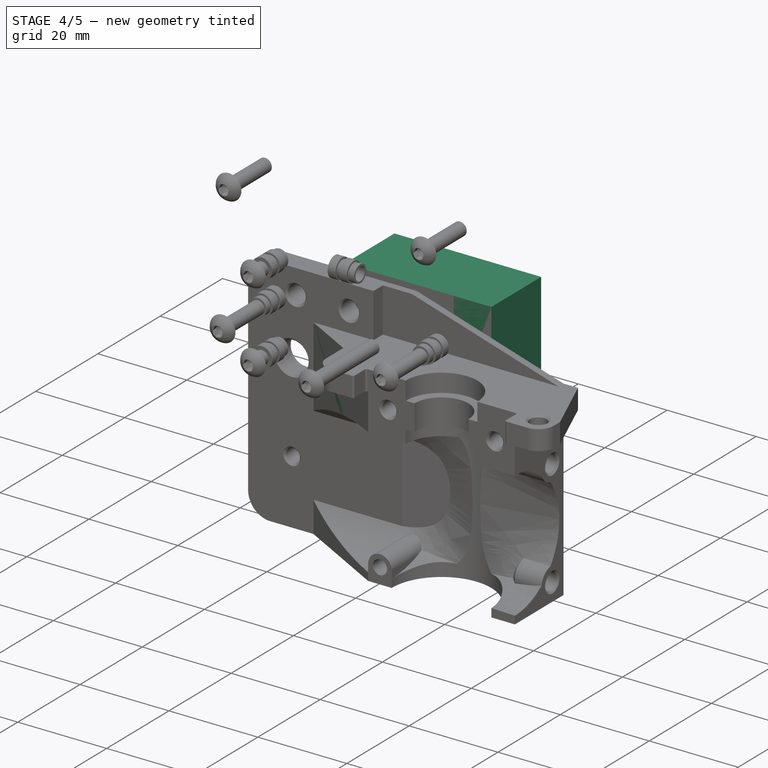
[diagram: stage 4 of 5 — iso view after this stage's code; geometry added in this stage tinted green]
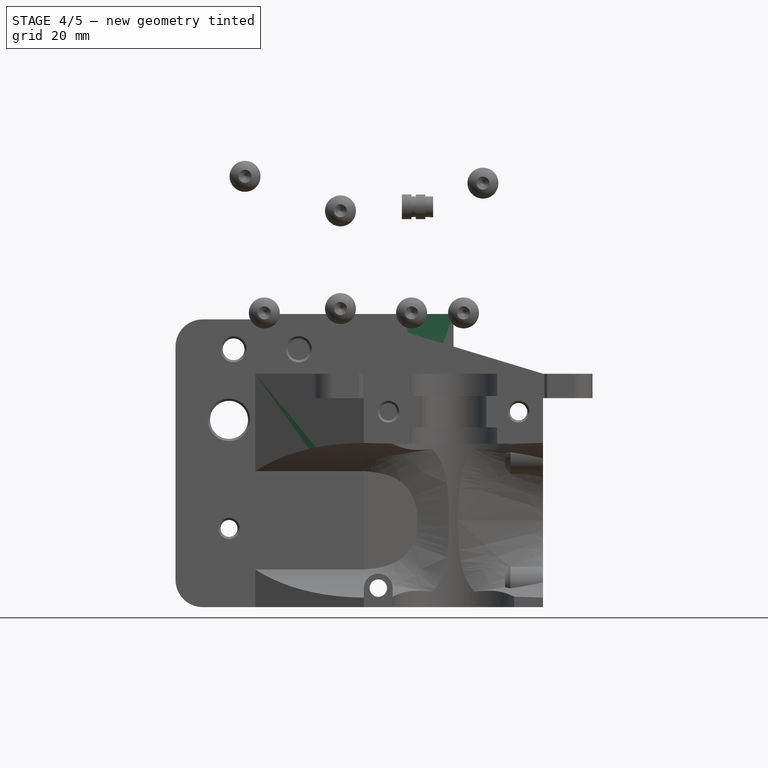
[diagram: stage 4 of 5 — front view after this stage's code; geometry added in this stage tinted green]
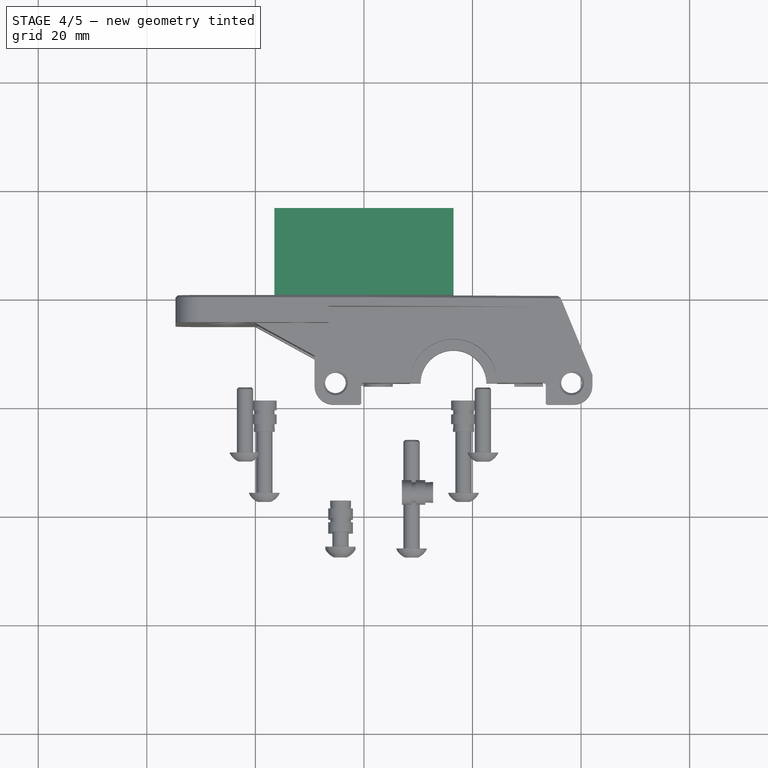
[diagram: stage 4 of 5 — top view after this stage's code; geometry added in this stage tinted green]
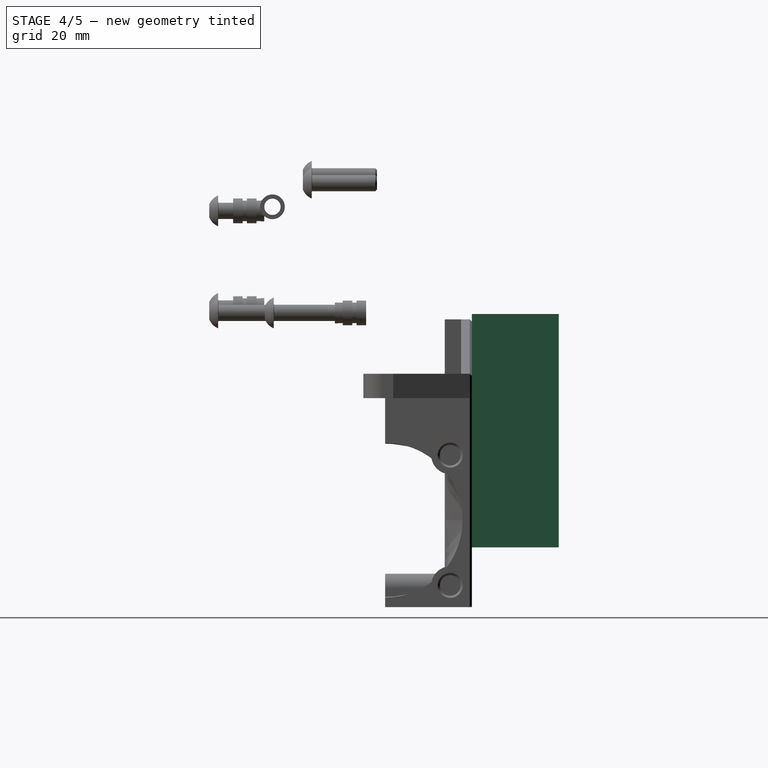
[diagram: stage 4 of 5 — right view after this stage's code; geometry added in this stage tinted green]
FEATURE [Part::Feature] Body002001  label="backup"
  shape: bbox 67.7 x 27 x 53.04 mm, 57 faces (baked)
FEATURE [Sketcher::SketchObject] Sketch
  FullyConstrained = true
  MapMode = 5
  Placement = pos=(0,0,0) rot=(1,0,0;1.5708rad)
  Support = -> [XZ_Plane]
  sketch-geometry (4):
    g0: LineSegment StartX=-16.5 StartY=0 StartZ=0 EndX=16.5 EndY=0 EndZ=0
    g1: LineSegment StartX=16.5 StartY=0 StartZ=0 EndX=16.5 EndY=43 EndZ=0
    g2: LineSegment StartX=16.5 StartY=43 StartZ=0 EndX=-16.5 EndY=43 EndZ=0
    g3: LineSegment StartX=-16.5 StartY=43 StartZ=0 EndX=-16.5 EndY=0 EndZ=0
  constraints (12):
    c: Coincident(g0,g1)
    c: Coincident(g1,g2)
    c: Coincident(g2,g3)
    c: Coincident(g3,g0)
    c: Horizontal(g0)
    c: Horizontal(g2)
    c: Vertical(g1)
    c: Vertical(g3)
    c: PointOnObject(g0,g-1)
    c: DistanceX(g2,g2) = 33
    c: DistanceX(g2,g-1) = 16.5
    c: DistanceY(g1,g1) = 43
FEATURE [PartDesign::Pad] Pad
  Direction = (1,1,1)
  Length = 16
  Length2 = 100
  Placement = pos=(0,0,0) rot=(1,0,0;1.5708rad)
  Profile = -> Sketch
  Reversed = true
  Type = 0
FEATURE [PartDesign::Body] Body002002  label="body-base-second"
  BaseFeature = -> Cut
  Group = -> [BaseFeature,Sketch012,Pad001,Chamfer,Sketch013,Pocket004,Sketch014,Pocket005]
  Origin = -> Origin011
  Tip = -> Pocket005
FEATURE [Part::Feature] Body002002001  label="body-base-second001"
  shape: bbox 33 x 27 x 43 mm, 35 faces (baked)
FEATURE [PartDesign::FeatureBase] BaseFeature001
  BaseFeature = -> Body002002001
FEATURE [Sketcher::SketchObject] Sketch015
  ExternalGeometry = -> [BaseFeature001]
  FullyConstrained = true
  MapMode = 5
  Placement = pos=(0,16,-3.5e-15) rot=(0,0.707107,0.707107;3.14159rad)
  Support = -> [BaseFeature001]
  sketch-geometry (2):
    g0: Circle CenterX=-12 CenterY=36 CenterZ=0 NormalX=0 NormalY=0 NormalZ=1 AngleXU=0 Radius=2
    g1: Circle CenterX=12 CenterY=36 CenterZ=0 NormalX=0 NormalY=0 NormalZ=1 AngleXU=0 Radius=2
  constraints (4):
    c: Coincident(g0,g-3)
    c: Coincident(g1,g-4)
    c: Equal(g0,g1)
    c: Radius(g1) = 2
FEATURE [PartDesign::Pocket] Pocket006
  BaseFeature = -> BaseFeature001
  Length = 6
  Length2 = 100
  Profile = -> Sketch015
  Type = 0
FEATURE [Sketcher::SketchObject] Sketch016
  FullyConstrained = true
  MapMode = 5
  Placement = pos=(0,16,-3.5e-15) rot=(0,0.707107,0.707107;3.14159rad)
  Support = -> [Pocket006]
  sketch-geometry (2):
    g0: Circle CenterX=-6 CenterY=4 CenterZ=0 NormalX=0 NormalY=0 NormalZ=1 AngleXU=0 Radius=2
    g1: Circle CenterX=6 CenterY=4 CenterZ=0 NormalX=0 NormalY=0 NormalZ=1 AngleXU=0 Radius=2
  constraints (6):
    c: Horizontal(g0,g1)
    c: Equal(g1,g0)
    c: DistanceX(g0,g-1) = 6
    c: DistanceX(g-1,g1) = 6
    c: Radius(g1) = 2
    c: DistanceY(g-1,g1) = 4
FEATURE [PartDesign::Pocket] Pocket007
  BaseFeature = -> Pocket006
  Length = 4
  Length2 = 100
  Profile = -> Sketch016
  Type = 0
FEATURE [PartDesign::Chamfer] Chamfer001
  Angle = 45
  Base = -> Pocket007 [Edge47,Edge45,Edge44,Edge46,Edge81,Edge59,Edge23,Edge22]
  BaseFeature = -> Pocket007
  ChamferType = 0
  FlipDirection = false
  Size = 0.4
  Size2 = 1
  SupportTransform = false
FEATURE [Part::Cylinder] Cylinder
  Angle = 180
  AttacherType = Attacher::AttachEngine3D
  Height = 20
  Placement = pos=(-1e-15,-16,5) rot=(0,-1,0;1.5708rad)
  Radius = 14.25
FEATURE [Part::Box] Box001  label="Cube001"
  AttacherType = Attacher::AttachEngine3D
  Height = 43
  Length = 20
  Placement = pos=(-20,-16,-11) rot=(0,0,1;0rad)
  Width = 16
FEATURE [Part::Cut] Cut001
  Base = -> Box001
  Tool = -> Cylinder
FEATURE [Part::Box] Box002  label="Cube002"
  AttacherType = Attacher::AttachEngine3D
  Height = 43
  Length = 20
  Placement = pos=(-20,-5,-11) rot=(0,0,1;0rad)
  Width = 5
FEATURE [Part::MultiFuse] Fusion004  label="side-connector"
  Shapes = -> [Box002,Cut001]
FEATURE [PartDesign::FeatureBase] BaseFeature002
  BaseFeature = -> Fusion004
FEATURE [Sketcher::SketchObject] Sketch018
  FullyConstrained = true
  MapMode = 5
  Placement = pos=(0,0,-11) rot=(1,0,0;3.14159rad)
  Support = -> [BaseFeature002]
  sketch-geometry (3):
    g0: LineSegment StartX=0 StartY=16 StartZ=0 EndX=-20 EndY=16 EndZ=0
    g1: LineSegment StartX=-20 StartY=16 StartZ=0 EndX=-20 EndY=5 EndZ=0
    g2: LineSegment StartX=-20 StartY=5 StartZ=0 EndX=0 EndY=16 EndZ=0
  constraints (9):
    c: PointOnObject(g0,g-2)
    c: Coincident(g0,g1)
    c: Vertical(g1)
    c: Coincident(g1,g2)
    c: Coincident(g2,g0)
    c: Horizontal(g0)
    c: DistanceY(g1,g1) = 11
    c: DistanceY(g-1,g1) = 5
    c: DistanceX(g0,g0) = 20
FEATURE [PartDesign::Pocket] Pocket008
  BaseFeature = -> BaseFeature002
  Length = 5
  Length2 = 100
  Profile = -> Sketch018
  Type = 1
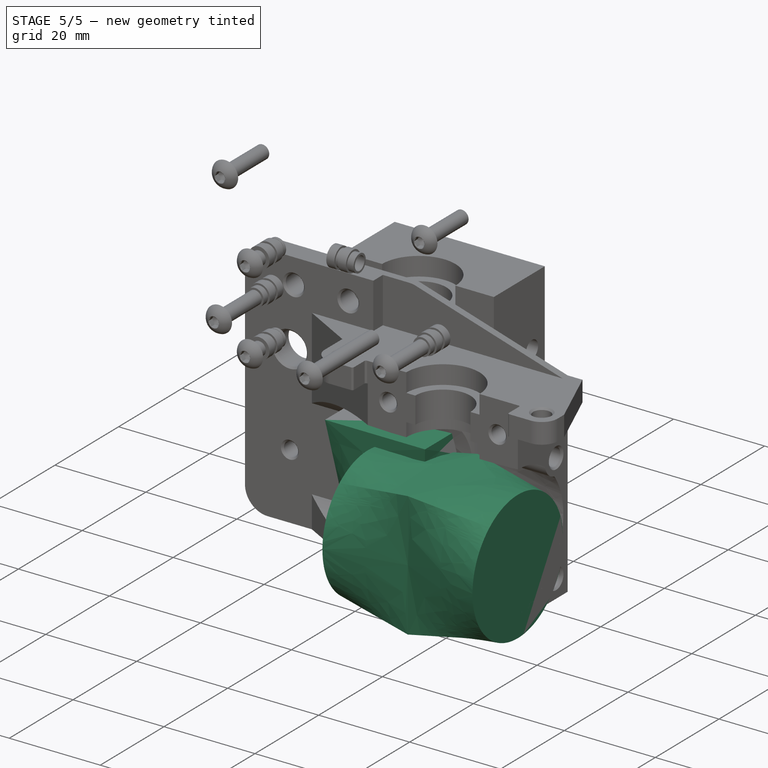
[diagram: stage 5 of 5 — iso view after this stage's code; geometry added in this stage tinted green]
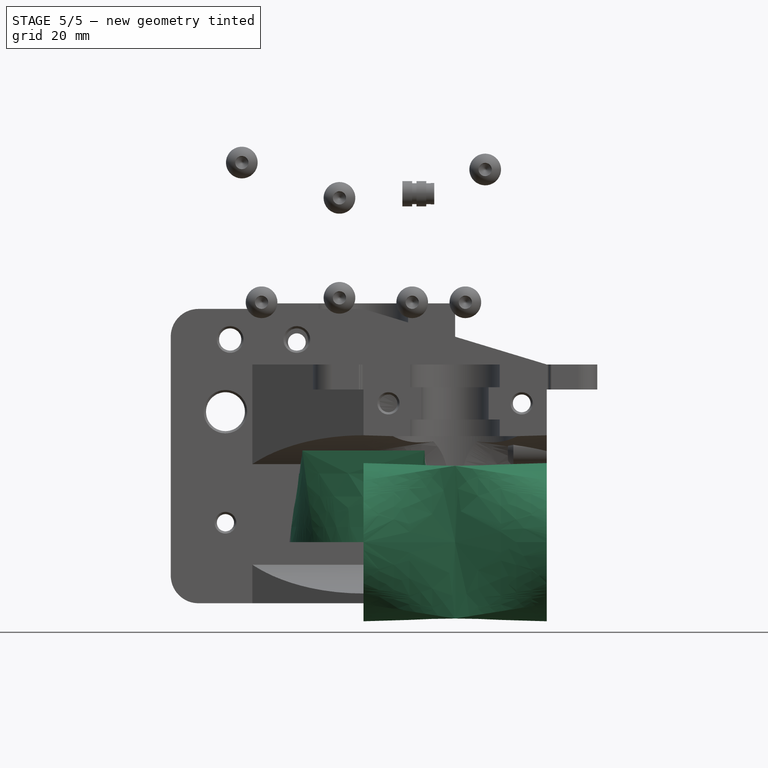
[diagram: stage 5 of 5 — front view after this stage's code; geometry added in this stage tinted green]
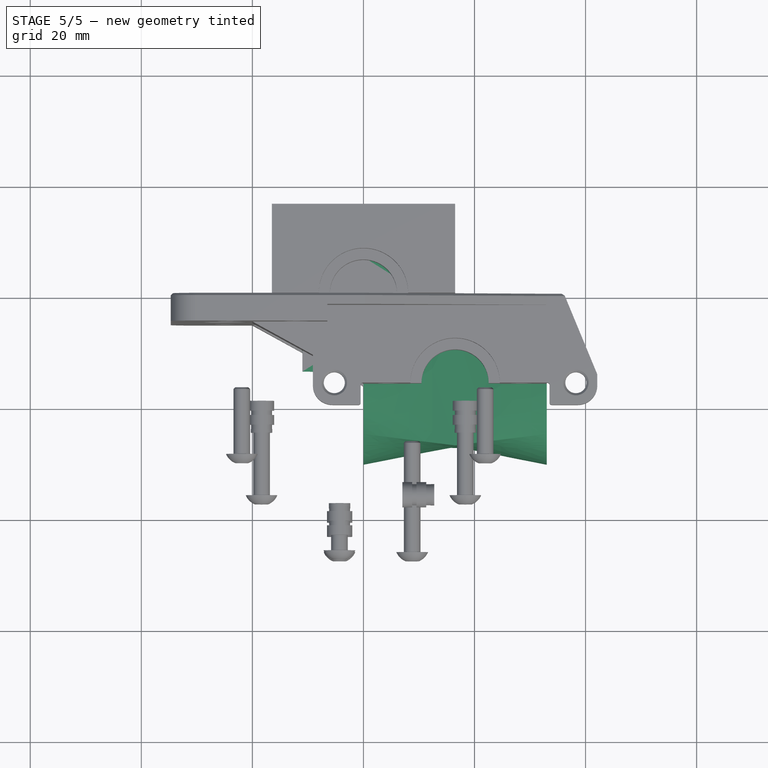
[diagram: stage 5 of 5 — top view after this stage's code; geometry added in this stage tinted green]
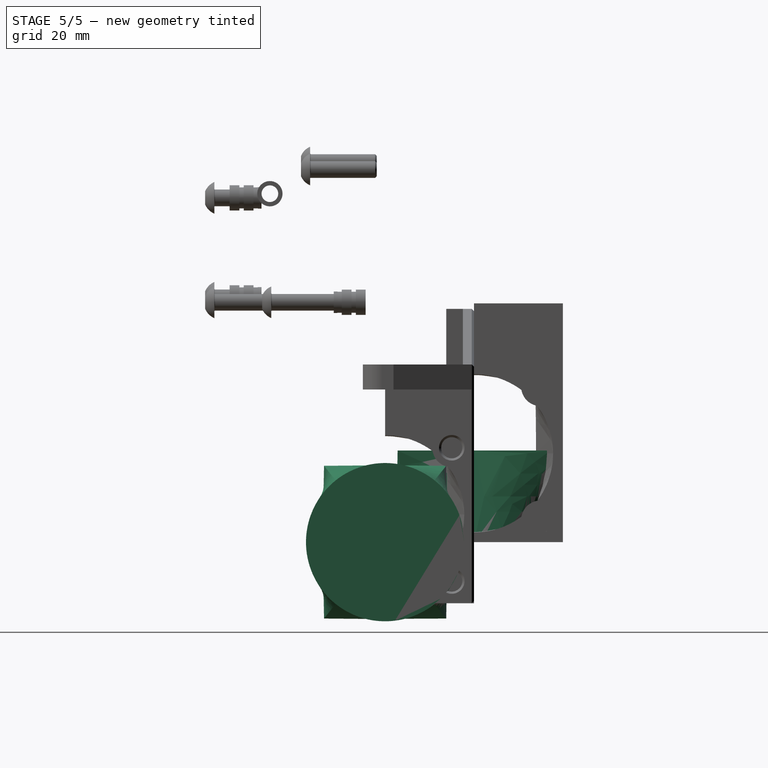
[diagram: stage 5 of 5 — right view after this stage's code; geometry added in this stage tinted green]
FEATURE [Part::Feature] Part__Feature026  label="break"
  Placement = pos=(4e-15,-3.6e-14,15) rot=(1,0,0;3.14159rad)
  shape: bbox 6.884 x 6.884 x 22.1 mm, 15 faces (baked)
FEATURE [Part::Feature] Part__Feature028  label="nozzle"
  Placement = pos=(7e-15,-3.6e-14,-7) rot=(1,0,0;3.14159rad)
  shape: bbox 7 x 8.083 x 12.5 mm, 18 faces (baked)
FEATURE [Part::Feature] Part__Feature025  label="ptfe"
  Placement = pos=(4e-15,-3.6e-14,9.6) rot=(0,0,1;0rad)
  shape: bbox 4 x 4 x 50 mm, 6 faces (baked)
FEATURE [Part::Feature] Part__Feature024  label="sink"
  Placement = pos=(0,-4e-15,-1e-15) rot=(0,0,1;0rad)
  shape: bbox 22.3 x 22.3 x 44.7 mm, 70 faces (baked)
FEATURE [Part::Feature] Part__Feature027  label="block"
  Placement = pos=(-15,-8,-14.1) rot=(0,0,1;0rad)
  shape: bbox 23 x 16 x 11.5 mm, 37 faces (baked)
FEATURE [App::Part] e3d_v6_v18  label="e3d_v6 v18"
  Group = -> [Part__Feature024,Part__Feature025,Part__Feature026,Part__Feature027,Part__Feature028]
  Origin = -> Origin009
  Placement = pos=(16.5,-16,0.3) rot=(0,0,-1;1.5708rad)
FEATURE [Part::Feature] Part__Feature029001  label="3010-fan-rpef"
  Placement = pos=(16.5,15.5,-4e-15) rot=(0.57735,-0.57735,0.57735;4.18879rad)
  shape: bbox 14.39 x 33.61 x 34.2 mm, 46 faces (baked)
FEATURE [Sketcher::SketchObject] Sketch006
  FullyConstrained = true
  MapMode = 5
  Support = -> [XY_Plane010]
  sketch-geometry (1):
    g0: Circle CenterX=0 CenterY=0 CenterZ=0 NormalX=0 NormalY=0 NormalZ=1 AngleXU=0 Radius=14.25
  constraints (2):
    c: Coincident(g0,g-1)
    c: Radius(g0) = 14.25
FEATURE [PartDesign::Plane] DatumPlane
  AttachmentOffset = pos=(0,0,16.5) rot=(0,0,1;0rad)
  Length = 60
  MapMode = 5
  Placement = pos=(0,0,16.5) rot=(0,0,1;0rad)
  ResizeMode = 0
  Support = -> [XY_Plane010]
  Width = 60
FEATURE [Sketcher::SketchObject] Sketch007
  FullyConstrained = true
  MapMode = 5
  Placement = pos=(0,0,16.5) rot=(0,0,1;0rad)
  Support = -> [DatumPlane]
  sketch-geometry (4):
    g0: LineSegment StartX=-11 StartY=13.75 StartZ=0 EndX=11 EndY=13.75 EndZ=0
    g1: LineSegment StartX=11 StartY=13.75 StartZ=0 EndX=11 EndY=-13.75 EndZ=0
    g2: LineSegment StartX=11 StartY=-13.75 StartZ=0 EndX=-11 EndY=-13.75 EndZ=0
    g3: LineSegment StartX=-11 StartY=-13.75 StartZ=0 EndX=-11 EndY=13.75 EndZ=0
  constraints (12):
    c: Coincident(g0,g1)
    c: Coincident(g1,g2)
    c: Coincident(g2,g3)
    c: Coincident(g3,g0)
    c: Horizontal(g0)
    c: Horizontal(g2)
    c: Vertical(g1)
    c: Vertical(g3)
    c: DistanceX(g0,g0) = 22
    c: DistanceY(g3,g3) = 27.5
    c: DistanceY(g-1,g0) = 13.75
    c: DistanceX(g0,g-1) = 11
FEATURE [PartDesign::AdditiveLoft] AdditiveLoft
  Closed = true
  Placement = pos=(0,0,16.5) rot=(0,0,1;0rad)
  Profile = -> Sketch007
  Ruled = true
  Sections = -> [Sketch006]
FEATURE [PartDesign::Body] Body001  label="air-channel"
  Group = -> [Sketch006,DatumPlane,Sketch007,AdditiveLoft]
  Origin = -> Origin010
  Placement = pos=(33,-16,-1) rot=(0.57735,-0.57735,-0.57735;2.0944rad)
  Tip = -> AdditiveLoft
FEATURE [Part::Feature] AdditiveLoft001
  Placement = pos=(16.5,-16,-1) rot=(0.57735,0.57735,-0.57735;4.18879rad)
  shape: bbox 16.5 x 29.15 x 29.45 mm, 7 faces (baked)
FEATURE [Part::Feature] AdditiveLoft002
  Placement = pos=(16.5,-16,-1) rot=(0.57735,-0.57735,0.57735;4.18879rad)
  shape: bbox 16.5 x 29.15 x 29.45 mm, 7 faces (baked)
FEATURE [Part::MultiFuse] Fusion  label="air-channel-cutout"
  Placement = pos=(0,0,1) rot=(0,0,1;0rad)
  Shapes = -> [AdditiveLoft001,AdditiveLoft002]
FEATURE [Sketcher::SketchObject] Sketch008
  FullyConstrained = true
  MapMode = 5
  Placement = pos=(0,1.89e-14,43) rot=(0,0,1;3.14159rad)
  Support = -> [Pad]
  sketch-geometry (1):
    g0: Circle CenterX=0 CenterY=0 CenterZ=0 NormalX=0 NormalY=0 NormalZ=1 AngleXU=0 Radius=8.05
  constraints (2):
    c: Coincident(g0,g-1)
    c: Radius(g0) = 8.05
FEATURE [PartDesign::Pocket] Pocket
  BaseFeature = -> Pad
  Length = 4.1
  Length2 = 100
  Placement = pos=(0,0,0) rot=(1,0,0;1.5708rad)
  Profile = -> Sketch008
  Type = 0
FEATURE [Sketcher::SketchObject] Sketch009
  FullyConstrained = true
  MapMode = 5
  Placement = pos=(0,0,38.9) rot=(0,0,1;3.14159rad)
  Support = -> [Pocket]
  sketch-geometry (1):
    g0: Circle CenterX=0 CenterY=0 CenterZ=0 NormalX=0 NormalY=0 NormalZ=1 AngleXU=0 Radius=6.05
  constraints (2):
    c: Coincident(g0,g-1)
    c: Radius(g0) = 6.05
FEATURE [PartDesign::Pocket] Pocket001
  BaseFeature = -> Pocket
  Length = 5.8
  Length2 = 100
  Placement = pos=(0,0,0) rot=(1,0,0;1.5708rad)
  Profile = -> Sketch009
  Type = 0
FEATURE [Sketcher::SketchObject] Sketch010
  FullyConstrained = true
  MapMode = 5
  Placement = pos=(0,0,33.1) rot=(0,0,1;3.14159rad)
  Support = -> [Pocket001]
  sketch-geometry (1):
    g0: Circle CenterX=0 CenterY=0 CenterZ=0 NormalX=0 NormalY=0 NormalZ=1 AngleXU=0 Radius=8.05
  constraints (2):
    c: Coincident(g0,g-1)
    c: Radius(g0) = 8.05
FEATURE [PartDesign::Pocket] Pocket002
  BaseFeature = -> Pocket001
  Length = 3
  Length2 = 100
  Placement = pos=(0,0,0) rot=(1,0,0;1.5708rad)
  Profile = -> Sketch010
  Type = 0
FEATURE [Sketcher::SketchObject] Sketch011
  FullyConstrained = true
  MapMode = 5
  Placement = pos=(0,0,30.1) rot=(0,0,1;3.14159rad)
  Support = -> [Pocket002]
  sketch-geometry (1):
    g0: Circle CenterX=0 CenterY=0 CenterZ=0 NormalX=0 NormalY=0 NormalZ=1 AngleXU=0 Radius=11.2
  constraints (2):
    c: Coincident(g0,g-1)
    c: Radius(g0) = 11.2
FEATURE [PartDesign::Pocket] Pocket003
  BaseFeature = -> Pocket002
  Length = 2
  Length2 = 100
  Placement = pos=(0,0,0) rot=(1,0,0;1.5708rad)
  Profile = -> Sketch011
  Type = 1
FEATURE [PartDesign::Body] Body
  Group = -> [Sketch,Pad,Sketch008,Pocket,Sketch009,Pocket001,Sketch010,Pocket002,Sketch011,Pocket003]
  Origin = -> Origin
  Tip = -> Pocket003
FEATURE [Part::Feature] Fusion001  label="air-channel-cutout001"
  Placement = pos=(-16.5,16,17) rot=(0,0,1;0rad)
  shape: bbox 33 x 29.81 x 29.45 mm, 12 faces (baked)
FEATURE [Part::Cut] Cut  label="body-base"
  Base = -> Pocket003
  Tool = -> Fusion001
FEATURE [PartDesign::FeatureBase] BaseFeature
  BaseFeature = -> Cut
FEATURE [Sketcher::SketchObject] Sketch012
  ExternalGeometry = -> [BaseFeature]
  FullyConstrained = true
  MapMode = 5
  Placement = pos=(16.5,0,0) rot=(0.57735,0.57735,0.57735;2.0944rad)
  Support = -> [BaseFeature]
  sketch-geometry (2):
    g0: Circle CenterX=12 CenterY=28 CenterZ=0 NormalX=0 NormalY=0 NormalZ=1 AngleXU=0 Radius=3.5
    g1: Circle CenterX=12 CenterY=4 CenterZ=0 NormalX=0 NormalY=0 NormalZ=1 AngleXU=0 Radius=3.5
  constraints (6):
    c: Vertical(g1,g0)
    c: DistanceX(g-3,g0) = 12
    c: DistanceY(g-3,g0) = 12
    c: DistanceY(g1,g0) = 24
    c: Equal(g1,g0)
    c: Radius(g0) = 3.5
FEATURE [PartDesign::Pad] Pad001
  BaseFeature = -> BaseFeature
  Direction = (1,1,1)
  Length = 7
  Length2 = 100
  Profile = -> Sketch012
  Reversed = true
  Type = 0
FEATURE [PartDesign::Chamfer] Chamfer
  Angle = 45
  Base = -> Pad001 [Edge77,Edge79]
  BaseFeature = -> Pad001
  ChamferType = 0
  FlipDirection = false
  Size = 1
  Size2 = 1
  SupportTransform = false
FEATURE [Sketcher::SketchObject] Sketch013
  ExternalGeometry = -> [Chamfer]
  FullyConstrained = true
  MapMode = 5
  Placement = pos=(16.5,0,0) rot=(0.57735,0.57735,0.57735;2.0944rad)
  Support = -> [Chamfer]
  sketch-geometry (2):
    g0: Circle CenterX=12 CenterY=28 CenterZ=0 NormalX=0 NormalY=0 NormalZ=1 AngleXU=0 Radius=1.9
    g1: Circle CenterX=12 CenterY=4 CenterZ=0 NormalX=0 NormalY=0 NormalZ=1 AngleXU=0 Radius=1.9
  constraints (4):
    c: Coincident(g0,g-3)
    c: Coincident(g1,g-4)
    c: Equal(g1,g0)
    c: Radius(g0) = 1.9
FEATURE [PartDesign::Pocket] Pocket004
  BaseFeature = -> Chamfer
  Length = 5
  Length2 = 100
  Profile = -> Sketch013
  Type = 0
FEATURE [Sketcher::SketchObject] Sketch014
  FullyConstrained = true
  MapMode = 5
  Placement = pos=(0,0,0) rot=(1,0,0;1.5708rad)
  Support = -> [Pocket004]
  sketch-geometry (2):
    g0: Circle CenterX=-12 CenterY=36 CenterZ=0 NormalX=0 NormalY=0 NormalZ=1 AngleXU=0 Radius=1.6
    g1: Circle CenterX=12 CenterY=36 CenterZ=0 NormalX=0 NormalY=0 NormalZ=1 AngleXU=0 Radius=1.6
  constraints (6):
    c: Equal(g0,g1)
    c: Horizontal(g1,g0)
    c: Radius(g1) = 1.6
    c: DistanceX(g-1,g1) = 12
    c: DistanceX(g0,g-1) = 12
    c: DistanceY(g-1,g0) = 36
FEATURE [PartDesign::Pocket] Pocket005
  BaseFeature = -> Pocket004
  Length = 5
  Length2 = 100
  Profile = -> Sketch014
  Refine = true
  Type = 1
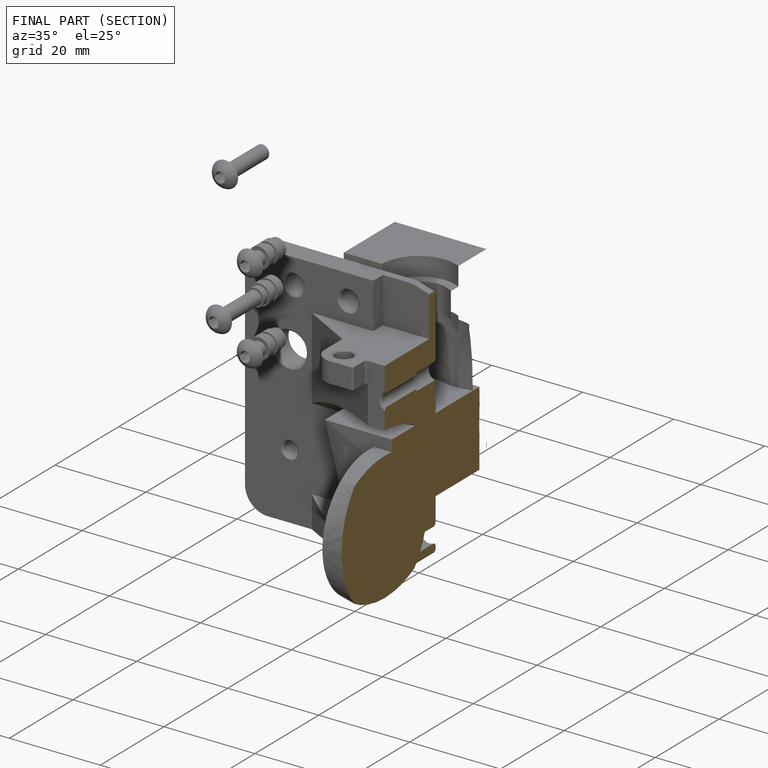
[diagram: finished part — half-section view (interior)]
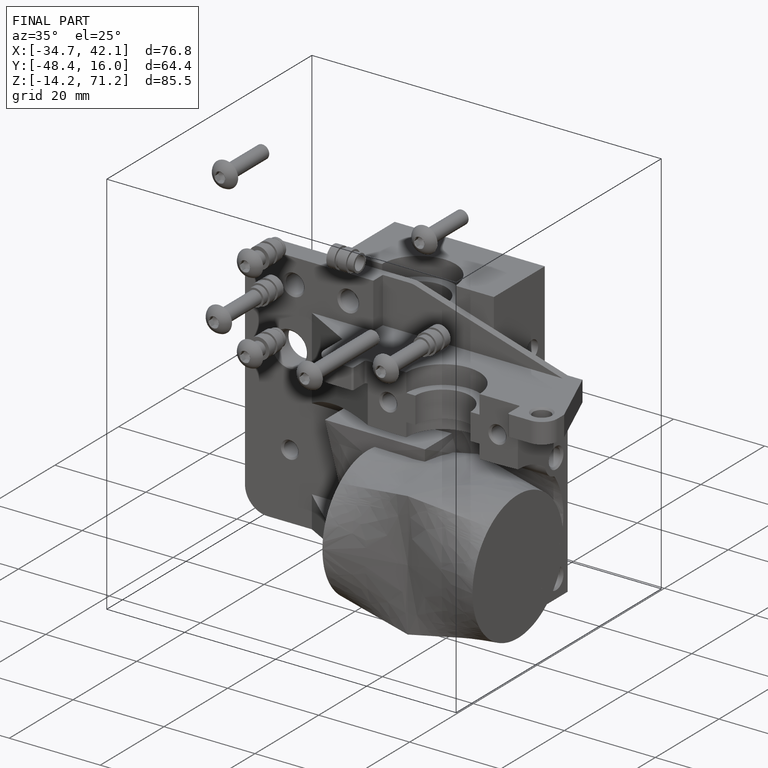
[diagram: finished part — iso view with bounding-box wireframe]
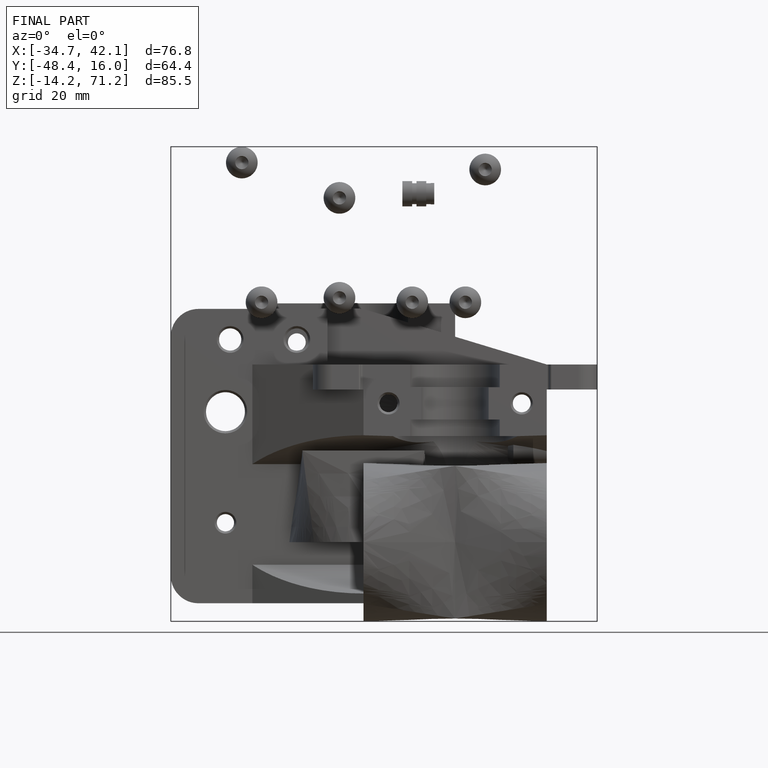
[diagram: finished part — front view with bounding-box wireframe]
